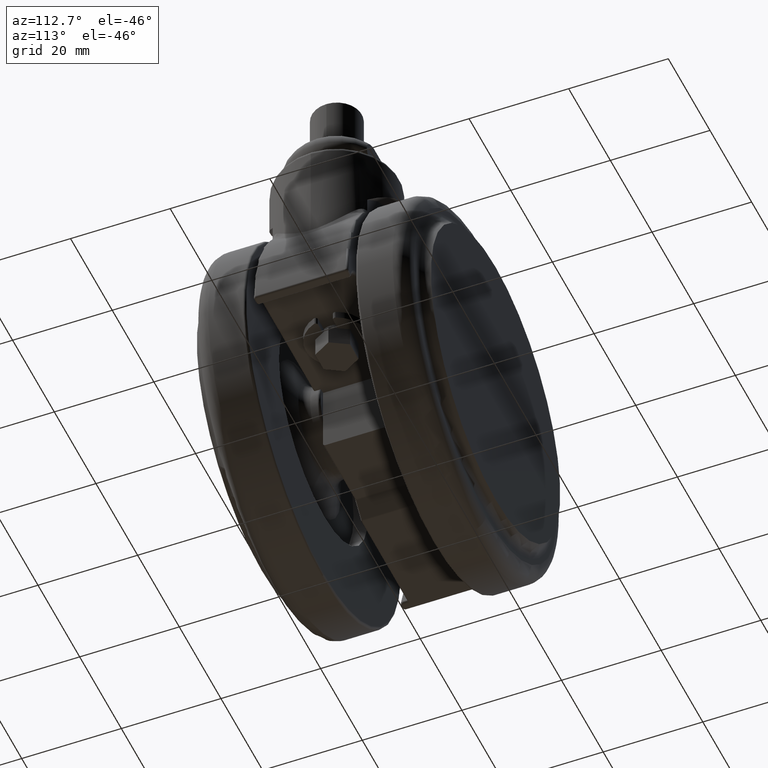
[diagram: clean part render]
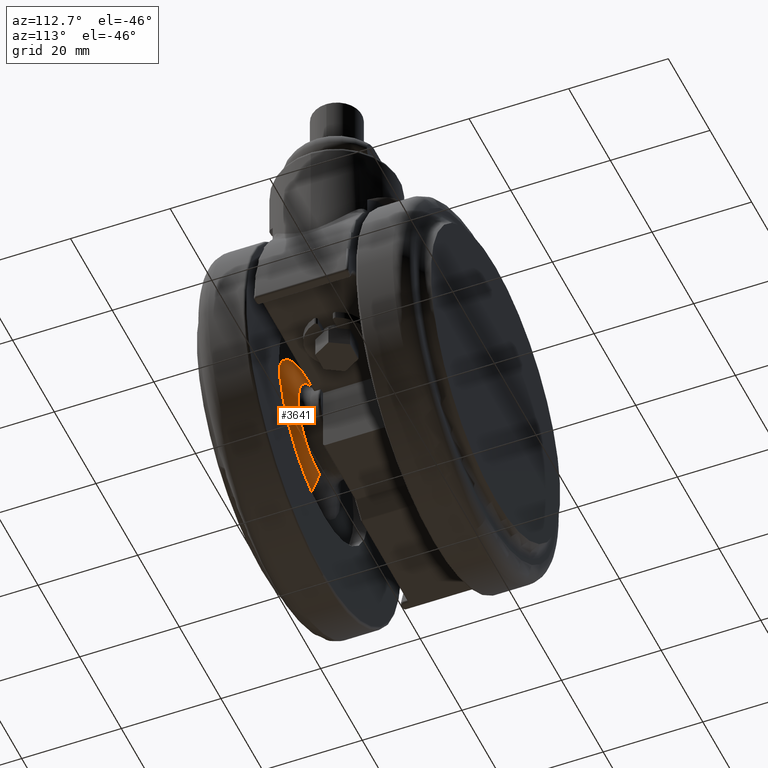
[diagram: same view with one face highlighted and labeled with its STEP entity id]
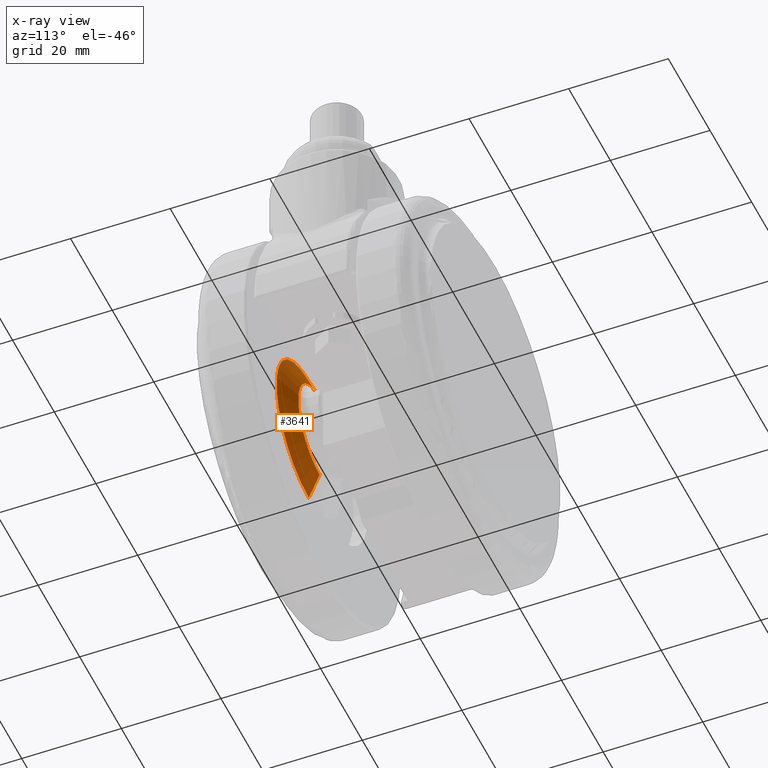
[diagram: x-ray of the same camera — body ghosted, the highlighted face saturated]
A machine part, auxiliary view. The second image highlights one B-rep face of the part: STEP entity #3641.
The next image is the same camera in x-ray: the body ghosted, the highlighted face saturated — about 0% of this face is hidden behind the body in this view.
In plain terms, the highlighted conical surface has half-angle 67.536 deg.
Its self-contained STEP definition (entity closure, byte-faithful):
#417 = AXIS2_PLACEMENT_3D ( 'NONE', #8713, #4710, #636 ) ;
#636 = DIRECTION ( 'NONE',  ( 0.0000000000000000000, 0.0000000000000000000, -1.000000000000000000 ) ) ;
#801 = EDGE_LOOP ( 'NONE', ( #8286, #7365, #1597, #1753 ) ) ;
#936 = CARTESIAN_POINT ( 'NONE',  ( -20.00000000000000000, -14.00000000000000000, -56.00000000000000000 ) ) ;
#1004 = VERTEX_POINT ( 'NONE', #5125 ) ;
#1051 = CIRCLE ( 'NONE', #1925, 10.23579126016620200 ) ;
#1057 = CONICAL_SURFACE ( 'NONE', #6068, 15.50000000000000000, 1.178723936475072600 ) ;
#1202 = CARTESIAN_POINT ( 'NONE',  ( -20.00000000000000000, -11.82335740127932100, -40.50000000000000000 ) ) ;
#1597 = ORIENTED_EDGE ( 'NONE', *, *, #4513, .F. ) ;
#1628 = DIRECTION ( 'NONE',  ( 0.0000000000000000000, -0.3821043699168795200, -0.9241191754803188600 ) ) ;
#1734 = CARTESIAN_POINT ( 'NONE',  ( -20.00000000000000000, -14.00000000000000000, -40.50000000000000000 ) ) ;
#1753 = ORIENTED_EDGE ( 'NONE', *, *, #2015, .F. ) ;
#1878 = DIRECTION ( 'NONE',  ( 0.0000000000000000000, 0.0000000000000000000, -1.000000000000000000 ) ) ;
#1925 = AXIS2_PLACEMENT_3D ( 'NONE', #1202, #5923, #1878 ) ;
#2015 = EDGE_CURVE ( 'NONE', #8027, #1004, #6686, .T. ) ;
#2335 = LINE ( 'NONE', #4828, #7504 ) ;
#2591 = VERTEX_POINT ( 'NONE', #4139 ) ;
#2828 = DIRECTION ( 'NONE',  ( 1.131719590282663600E-016, -0.3821043699168795200, 0.9241191754803188600 ) ) ;
#2893 = VECTOR ( 'NONE', #1628, 1000.000000000000100 ) ;
#3060 = DIRECTION ( 'NONE',  ( 0.0000000000000000000, -1.000000000000000000, 0.0000000000000000000 ) ) ;
#3486 = EDGE_CURVE ( 'NONE', #2591, #3692, #2335, .T. ) ;
#3641 = ADVANCED_FACE ( 'NONE', ( #8434 ), #1057, .T. ) ;
#3692 = VERTEX_POINT ( 'NONE', #4498 ) ;
#4139 = CARTESIAN_POINT ( 'NONE',  ( -19.99999999999999600, -11.82335740127932100, -30.26420873983379800 ) ) ;
#4498 = CARTESIAN_POINT ( 'NONE',  ( -19.99999999999999600, -14.00000000000000000, -25.00000000000000000 ) ) ;
#4513 = EDGE_CURVE ( 'NONE', #1004, #3692, #4889, .T. ) ;
#4710 = DIRECTION ( 'NONE',  ( 0.0000000000000000000, -1.000000000000000000, 0.0000000000000000000 ) ) ;
#4828 = CARTESIAN_POINT ( 'NONE',  ( -19.99999999999999600, -14.00000000000000000, -25.00000000000000000 ) ) ;
#4889 = CIRCLE ( 'NONE', #417, 15.50000000000000000 ) ;
#5125 = CARTESIAN_POINT ( 'NONE',  ( -20.00000000000000000, -14.00000000000000000, -56.00000000000000000 ) ) ;
#5923 = DIRECTION ( 'NONE',  ( 0.0000000000000000000, -1.000000000000000000, 0.0000000000000000000 ) ) ;
#6068 = AXIS2_PLACEMENT_3D ( 'NONE', #1734, #3060, #6446 ) ;
#6318 = CARTESIAN_POINT ( 'NONE',  ( -20.00000000000000000, -11.82335740127932100, -50.73579126016620200 ) ) ;
#6446 = DIRECTION ( 'NONE',  ( 0.0000000000000000000, 0.0000000000000000000, -1.000000000000000000 ) ) ;
#6686 = LINE ( 'NONE', #936, #2893 ) ;
#7173 = EDGE_CURVE ( 'NONE', #8027, #2591, #1051, .T. ) ;
#7365 = ORIENTED_EDGE ( 'NONE', *, *, #3486, .T. ) ;
#7504 = VECTOR ( 'NONE', #2828, 1000.000000000000100 ) ;
#8027 = VERTEX_POINT ( 'NONE', #6318 ) ;
#8286 = ORIENTED_EDGE ( 'NONE', *, *, #7173, .T. ) ;
#8434 = FACE_OUTER_BOUND ( 'NONE', #801, .T. ) ;
#8713 = CARTESIAN_POINT ( 'NONE',  ( -20.00000000000000000, -14.00000000000000000, -40.50000000000000000 ) ) ;